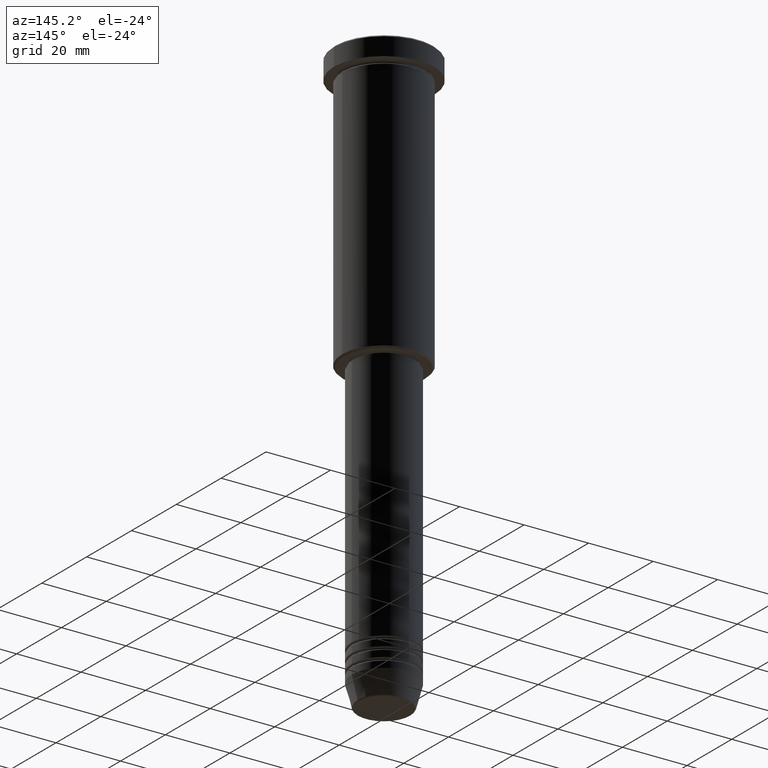
[diagram: clean part render]
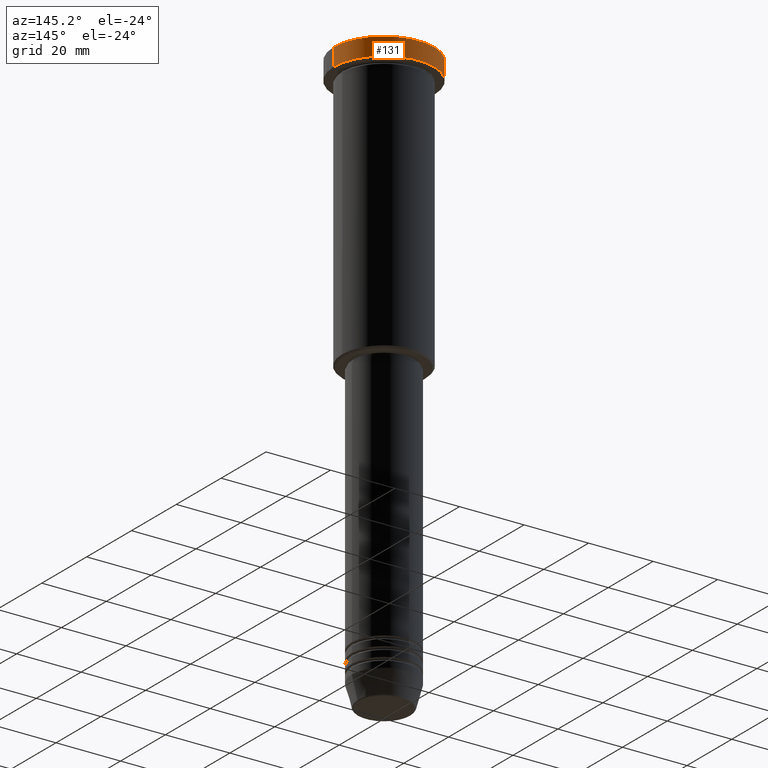
[diagram: same view with one face highlighted and labeled with its STEP entity id]
A machine part, auxiliary view. The second image highlights one B-rep face of the part: STEP entity #131.
In plain terms, the highlighted cylindrical surface (partial cylindrical patch) has radius 15.5 mm, axis along (-0, -0, 1).
Its self-contained STEP definition (entity closure, byte-faithful):
#52 = CIRCLE ( 'NONE', #90, 15.50000000000000000 ) ;
#70 = VECTOR ( 'NONE', #744, 1000.000000000000000 ) ;
#90 = AXIS2_PLACEMENT_3D ( 'NONE', #972, #426, #171 ) ;
#126 = LINE ( 'NONE', #1031, #70 ) ;
#131 = ADVANCED_FACE ( 'NONE', ( #479 ), #198, .T. ) ;
#171 = DIRECTION ( 'NONE',  ( 1.000000000000000000, 0.000000000000000000, 0.000000000000000000 ) ) ;
#177 = ORIENTED_EDGE ( 'NONE', *, *, #914, .T. ) ;
#198 = CYLINDRICAL_SURFACE ( 'NONE', #918, 15.50000000000000000 ) ;
#223 = CARTESIAN_POINT ( 'NONE',  ( 15.50000000000000000, 0.000000000000000000, -0.5000000000000125455 ) ) ;
#258 = VERTEX_POINT ( 'NONE', #223 ) ;
#273 = LINE ( 'NONE', #814, #749 ) ;
#318 = VERTEX_POINT ( 'NONE', #544 ) ;
#328 = DIRECTION ( 'NONE',  ( 1.000000000000000000, 0.000000000000000000, 0.000000000000000000 ) ) ;
#426 = DIRECTION ( 'NONE',  ( 0.000000000000000000, 0.000000000000000000, -1.000000000000000000 ) ) ;
#433 = ORIENTED_EDGE ( 'NONE', *, *, #738, .T. ) ;
#479 = FACE_OUTER_BOUND ( 'NONE', #797, .T. ) ;
#522 = DIRECTION ( 'NONE',  ( -0.000000000000000000, -0.000000000000000000, 1.000000000000000000 ) ) ;
#544 = CARTESIAN_POINT ( 'NONE',  ( -15.50000000000000000, 1.898202538678397557E-15, -0.5000000000000125455 ) ) ;
#566 = CARTESIAN_POINT ( 'NONE',  ( 0.000000000000000000, 0.000000000000000000, 0.000000000000000000 ) ) ;
#589 = CARTESIAN_POINT ( 'NONE',  ( 15.50000000000000000, 0.000000000000000000, -5.999999999999995559 ) ) ;
#651 = EDGE_CURVE ( 'NONE', #654, #258, #126, .T. ) ;
#654 = VERTEX_POINT ( 'NONE', #589 ) ;
#738 = EDGE_CURVE ( 'NONE', #318, #258, #52, .T. ) ;
#744 = DIRECTION ( 'NONE',  ( -0.000000000000000000, -0.000000000000000000, 1.000000000000000000 ) ) ;
#749 = VECTOR ( 'NONE', #993, 1000.000000000000000 ) ;
#768 = AXIS2_PLACEMENT_3D ( 'NONE', #796, #522, #328 ) ;
#774 = ORIENTED_EDGE ( 'NONE', *, *, #651, .F. ) ;
#793 = EDGE_CURVE ( 'NONE', #654, #952, #865, .T. ) ;
#796 = CARTESIAN_POINT ( 'NONE',  ( 0.000000000000000000, 0.000000000000000000, -5.999999999999995559 ) ) ;
#797 = EDGE_LOOP ( 'NONE', ( #867, #177, #433, #774 ) ) ;
#814 = CARTESIAN_POINT ( 'NONE',  ( -15.50000000000000000, 1.898202538678397557E-15, 0.000000000000000000 ) ) ;
#865 = CIRCLE ( 'NONE', #768, 15.50000000000000000 ) ;
#867 = ORIENTED_EDGE ( 'NONE', *, *, #793, .T. ) ;
#914 = EDGE_CURVE ( 'NONE', #952, #318, #273, .T. ) ;
#918 = AXIS2_PLACEMENT_3D ( 'NONE', #566, #992, #926 ) ;
#926 = DIRECTION ( 'NONE',  ( 1.000000000000000000, 0.000000000000000000, 0.000000000000000000 ) ) ;
#952 = VERTEX_POINT ( 'NONE', #1090 ) ;
#972 = CARTESIAN_POINT ( 'NONE',  ( 0.000000000000000000, 0.000000000000000000, -0.5000000000000125455 ) ) ;
#992 = DIRECTION ( 'NONE',  ( -0.000000000000000000, -0.000000000000000000, 1.000000000000000000 ) ) ;
#993 = DIRECTION ( 'NONE',  ( -0.000000000000000000, -0.000000000000000000, 1.000000000000000000 ) ) ;
#1031 = CARTESIAN_POINT ( 'NONE',  ( 15.50000000000000000, 0.000000000000000000, 0.000000000000000000 ) ) ;
#1090 = CARTESIAN_POINT ( 'NONE',  ( -15.50000000000000000, 1.898202538678397557E-15, -5.999999999999995559 ) ) ;